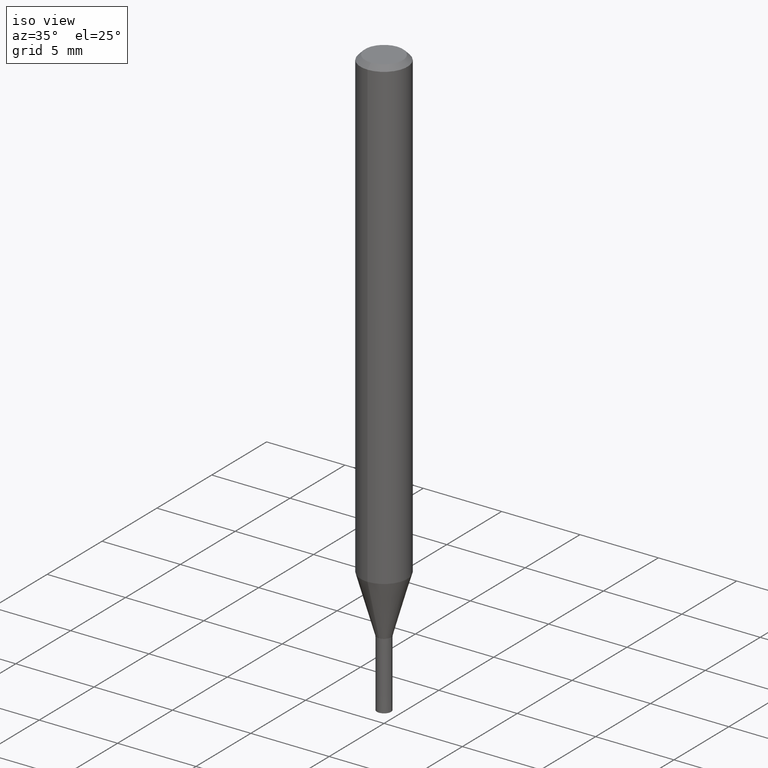
[diagram: clean part render]
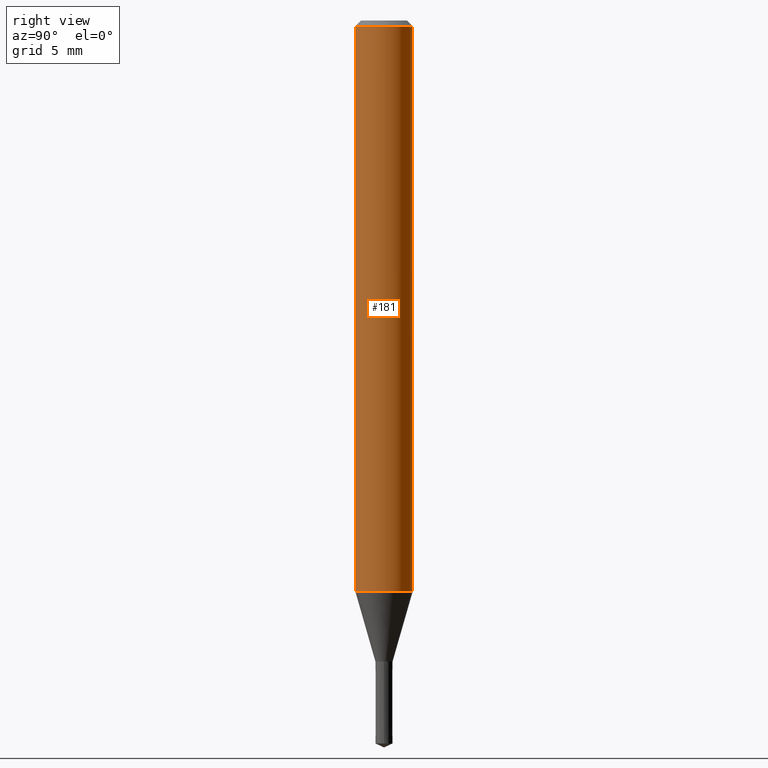
[diagram: tour spotlight — one face highlighted and labeled with its STEP entity id]
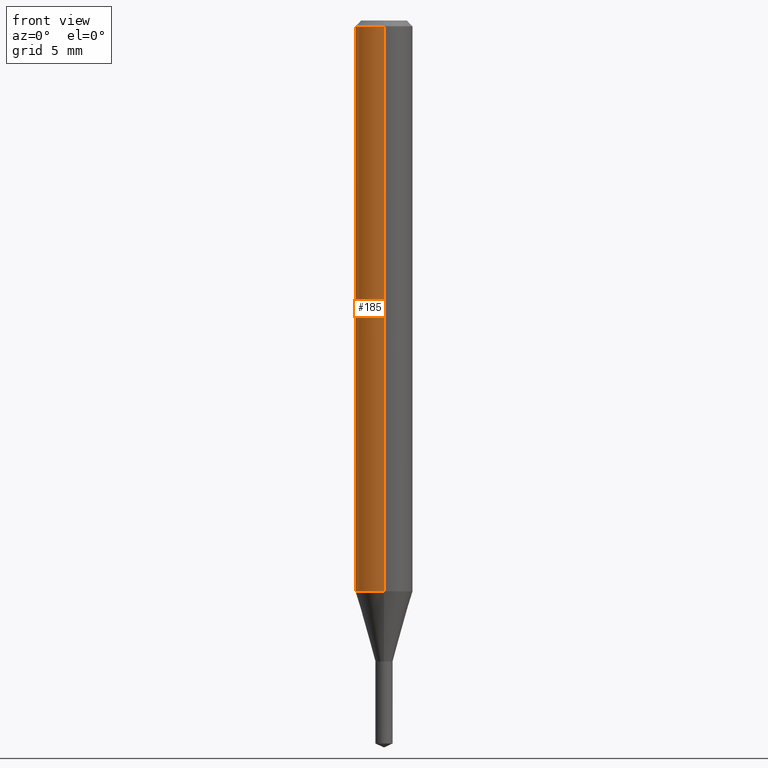
[diagram: tour spotlight — one face highlighted and labeled with its STEP entity id]
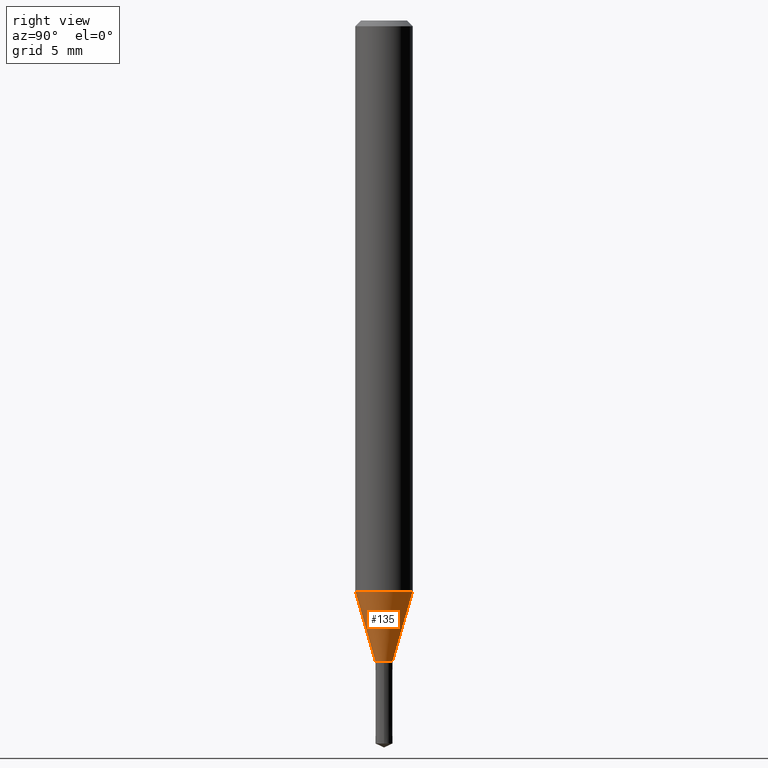
[diagram: tour spotlight — one face highlighted and labeled with its STEP entity id]
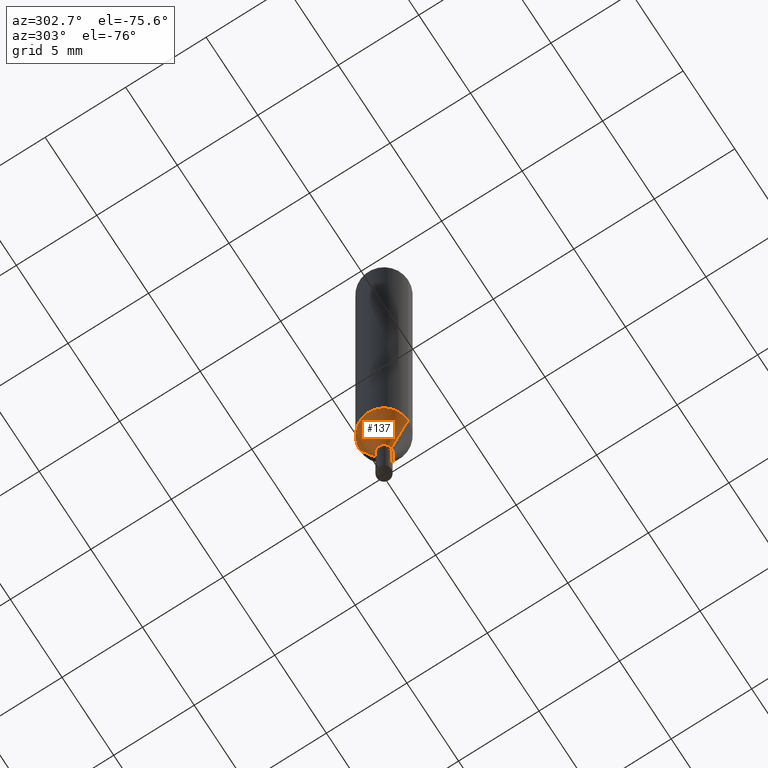
[diagram: tour spotlight — one face highlighted and labeled with its STEP entity id]
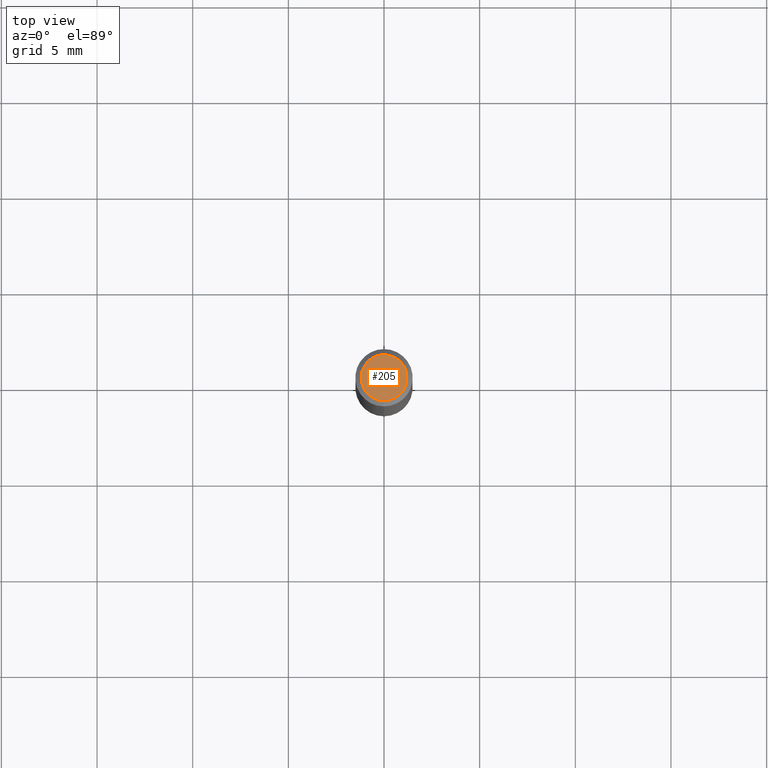
[diagram: tour spotlight — one face highlighted and labeled with its STEP entity id]
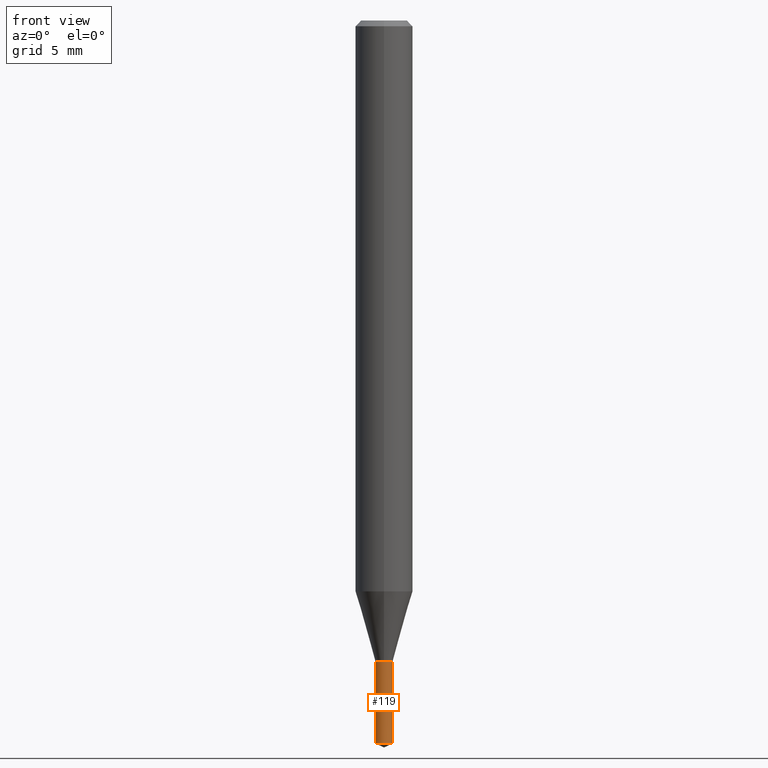
[diagram: tour spotlight — one face highlighted and labeled with its STEP entity id]
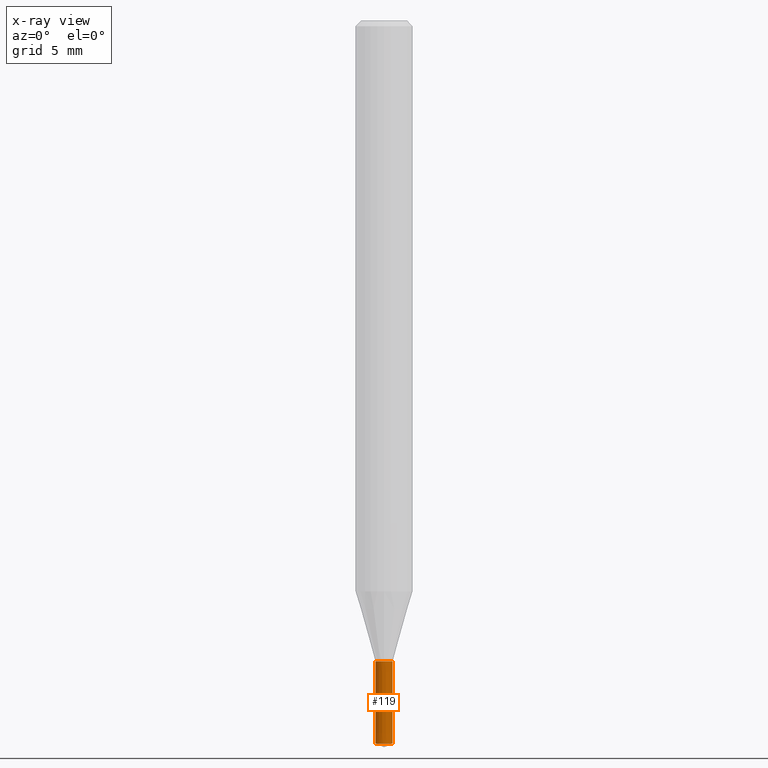
[diagram: x-ray of the same camera — body ghosted, this tour face saturated]
A machine part: a face-by-face anatomy tour. The part has 15 B-rep faces; the first image is the clean iso view, then the 6 largest visible faces are spotlighted one at a time (largest first), each with its STEP entity span.

Face 1 — right view, entity #181. In plain terms, the highlighted cylindrical surface (edge-blend (fillet) strip) has radius 1.5 mm, axis along (-0, -0, 1).
Definition (entity closure, byte-faithful):
#111=EDGE_CURVE('',#115,#189,#246,.T.);
#115=VERTEX_POINT('',#250);
#125=VERTEX_POINT('',#262);
#127=EDGE_CURVE('',#125,#141,#264,.T.);
#141=VERTEX_POINT('',#280);
#181=ADVANCED_FACE('',(#327),#328,.T.);
#189=VERTEX_POINT('',#337);
#195=EDGE_CURVE('',#141,#189,#344,.T.);
#199=EDGE_CURVE('',#115,#125,#348,.T.);
#246=CIRCLE('',#396,1.5);
#250=CARTESIAN_POINT('',(0.0,1.5,-0.300000000000001));
#262=CARTESIAN_POINT('',(0.0,1.5,-29.838));
#264=CIRCLE('',#417,1.5);
#280=CARTESIAN_POINT('',(1.83690953073357E-016,-1.5,-29.838));
#327=FACE_OUTER_BOUND('',#494,.T.);
#328=CYLINDRICAL_SURFACE('',#495,1.5);
#337=CARTESIAN_POINT('',(1.83690953073357E-016,-1.5,-0.300000000000001));
#344=LINE('',#514,#515);
#348=LINE('',#522,#523);
#396=AXIS2_PLACEMENT_3D('',#545,#546,#547);
#417=AXIS2_PLACEMENT_3D('',#568,#569,#570);
#494=EDGE_LOOP('',(#666,#667,#668,#669));
#495=AXIS2_PLACEMENT_3D('',#670,#671,#672);
#514=CARTESIAN_POINT('',(1.83690953073357E-016,-1.5,-15.069));
#515=VECTOR('',#690,1.0);
#522=CARTESIAN_POINT('',(-1.83690953073357E-016,1.5,-15.069));
#523=VECTOR('',#692,1.0);
#545=CARTESIAN_POINT('',(0.0,0.0,-0.300000000000001));
#546=DIRECTION('',(0.0,0.0,-1.0));
#547=DIRECTION('',(0.0,1.0,0.0));
#568=CARTESIAN_POINT('',(0.0,0.0,-29.838));
#569=DIRECTION('',(0.0,0.0,-1.0));
#570=DIRECTION('',(0.0,1.0,0.0));
#666=ORIENTED_EDGE('',*,*,#199,.F.);
#667=ORIENTED_EDGE('',*,*,#111,.T.);
#668=ORIENTED_EDGE('',*,*,#195,.F.);
#669=ORIENTED_EDGE('',*,*,#127,.F.);
#670=CARTESIAN_POINT('',(0.0,0.0,-15.069));
#671=DIRECTION('',(-0.0,-0.0,1.0));
#672=DIRECTION('',(0.0,1.0,0.0));
#690=DIRECTION('',(-0.0,-0.0,1.0));
#692=DIRECTION('',(0.0,0.0,-1.0));

Face 2 — front view, entity #185. In plain terms, the highlighted cylindrical surface (edge-blend (fillet) strip) has radius 1.5 mm, axis along (-0, -0, 1).
Definition (entity closure, byte-faithful):
#115=VERTEX_POINT('',#250);
#125=VERTEX_POINT('',#262);
#141=VERTEX_POINT('',#280);
#147=EDGE_CURVE('',#141,#125,#286,.T.);
#171=EDGE_CURVE('',#189,#115,#314,.T.);
#185=ADVANCED_FACE('',(#332),#333,.T.);
#189=VERTEX_POINT('',#337);
#195=EDGE_CURVE('',#141,#189,#344,.T.);
#199=EDGE_CURVE('',#115,#125,#348,.T.);
#250=CARTESIAN_POINT('',(0.0,1.5,-0.300000000000001));
#262=CARTESIAN_POINT('',(0.0,1.5,-29.838));
#280=CARTESIAN_POINT('',(1.83690953073357E-016,-1.5,-29.838));
#286=CIRCLE('',#442,1.5);
#314=CIRCLE('',#480,1.5);
#332=FACE_OUTER_BOUND('',#499,.T.);
#333=CYLINDRICAL_SURFACE('',#500,1.5);
#337=CARTESIAN_POINT('',(1.83690953073357E-016,-1.5,-0.300000000000001));
#344=LINE('',#514,#515);
#348=LINE('',#522,#523);
#442=AXIS2_PLACEMENT_3D('',#597,#598,#599);
#480=AXIS2_PLACEMENT_3D('',#636,#637,#638);
#499=EDGE_LOOP('',(#674,#675,#676,#677));
#500=AXIS2_PLACEMENT_3D('',#678,#679,#680);
#514=CARTESIAN_POINT('',(1.83690953073357E-016,-1.5,-15.069));
#515=VECTOR('',#690,1.0);
#522=CARTESIAN_POINT('',(-1.83690953073357E-016,1.5,-15.069));
#523=VECTOR('',#692,1.0);
#597=CARTESIAN_POINT('',(0.0,0.0,-29.838));
#598=DIRECTION('',(0.0,0.0,-1.0));
#599=DIRECTION('',(0.0,1.0,0.0));
#636=CARTESIAN_POINT('',(0.0,0.0,-0.300000000000001));
#637=DIRECTION('',(0.0,0.0,-1.0));
#638=DIRECTION('',(0.0,1.0,0.0));
#674=ORIENTED_EDGE('',*,*,#199,.T.);
#675=ORIENTED_EDGE('',*,*,#147,.F.);
#676=ORIENTED_EDGE('',*,*,#195,.T.);
#677=ORIENTED_EDGE('',*,*,#171,.T.);
#678=CARTESIAN_POINT('',(0.0,0.0,-15.069));
#679=DIRECTION('',(-0.0,-0.0,1.0));
#680=DIRECTION('',(0.0,1.0,0.0));
#690=DIRECTION('',(-0.0,-0.0,1.0));
#692=DIRECTION('',(0.0,0.0,-1.0));

Face 3 — right view, entity #135. In plain terms, the highlighted conical surface has half-angle 16.003 deg.
Definition (entity closure, byte-faithful):
#101=EDGE_CURVE('',#125,#145,#236,.T.);
#125=VERTEX_POINT('',#262);
#127=EDGE_CURVE('',#125,#141,#264,.T.);
#135=ADVANCED_FACE('',(#272),#273,.T.);
#141=VERTEX_POINT('',#280);
#145=VERTEX_POINT('',#284);
#161=EDGE_CURVE('',#183,#141,#303,.T.);
#183=VERTEX_POINT('',#330);
#201=EDGE_CURVE('',#145,#183,#350,.T.);
#236=LINE('',#381,#382);
#262=CARTESIAN_POINT('',(0.0,1.5,-29.838));
#264=CIRCLE('',#417,1.5);
#272=FACE_OUTER_BOUND('',#427,.T.);
#273=CONICAL_SURFACE('',#428,0.975,0.27929980700525);
#280=CARTESIAN_POINT('',(1.83690953073357E-016,-1.5,-29.838));
#284=CARTESIAN_POINT('',(0.0,0.45,-33.4991339745962));
#303=LINE('',#463,#464);
#330=CARTESIAN_POINT('',(5.5107285922007E-017,-0.45,-33.4991339745962));
#350=CIRCLE('',#526,0.45);
#381=CARTESIAN_POINT('',(-1.19399119497682E-016,0.975,-31.6685669872981));
#382=VECTOR('',#540,1.0);
#417=AXIS2_PLACEMENT_3D('',#568,#569,#570);
#427=EDGE_LOOP('',(#578,#579,#580,#581));
#428=AXIS2_PLACEMENT_3D('',#582,#583,#584);
#463=CARTESIAN_POINT('',(1.19399119497682E-016,-0.975,-31.6685669872981));
#464=VECTOR('',#627,1.0);
#526=AXIS2_PLACEMENT_3D('',#693,#694,#695);
#540=DIRECTION('',(3.37602732897714E-017,-0.275682656589157,-0.961248704995718));
#568=CARTESIAN_POINT('',(0.0,0.0,-29.838));
#569=DIRECTION('',(0.0,0.0,-1.0));
#570=DIRECTION('',(0.0,1.0,0.0));
#578=ORIENTED_EDGE('',*,*,#101,.F.);
#579=ORIENTED_EDGE('',*,*,#127,.T.);
#580=ORIENTED_EDGE('',*,*,#161,.F.);
#581=ORIENTED_EDGE('',*,*,#201,.F.);
#582=CARTESIAN_POINT('',(0.0,0.0,-31.6685669872981));
#583=DIRECTION('',(-0.0,-0.0,1.0));
#584=DIRECTION('',(0.0,1.0,0.0));
#627=DIRECTION('',(3.37602732897714E-017,-0.275682656589157,0.961248704995718));
#693=CARTESIAN_POINT('',(0.0,0.0,-33.4991339745962));
#694=DIRECTION('',(0.0,0.0,-1.0));
#695=DIRECTION('',(0.0,1.0,0.0));

Face 4 — auxiliary view, entity #137. In plain terms, the highlighted conical surface has half-angle 16.003 deg.
Definition (entity closure, byte-faithful):
#101=EDGE_CURVE('',#125,#145,#236,.T.);
#125=VERTEX_POINT('',#262);
#129=EDGE_CURVE('',#183,#145,#266,.T.);
#137=ADVANCED_FACE('',(#275),#276,.T.);
#141=VERTEX_POINT('',#280);
#145=VERTEX_POINT('',#284);
#147=EDGE_CURVE('',#141,#125,#286,.T.);
#161=EDGE_CURVE('',#183,#141,#303,.T.);
#183=VERTEX_POINT('',#330);
#236=LINE('',#381,#382);
#262=CARTESIAN_POINT('',(0.0,1.5,-29.838));
#266=CIRCLE('',#420,0.45);
#275=FACE_OUTER_BOUND('',#430,.T.);
#276=CONICAL_SURFACE('',#431,0.975,0.27929980700525);
#280=CARTESIAN_POINT('',(1.83690953073357E-016,-1.5,-29.838));
#284=CARTESIAN_POINT('',(0.0,0.45,-33.4991339745962));
#286=CIRCLE('',#442,1.5);
#303=LINE('',#463,#464);
#330=CARTESIAN_POINT('',(5.5107285922007E-017,-0.45,-33.4991339745962));
#381=CARTESIAN_POINT('',(-1.19399119497682E-016,0.975,-31.6685669872981));
#382=VECTOR('',#540,1.0);
#420=AXIS2_PLACEMENT_3D('',#571,#572,#573);
#430=EDGE_LOOP('',(#586,#587,#588,#589));
#431=AXIS2_PLACEMENT_3D('',#590,#591,#592);
#442=AXIS2_PLACEMENT_3D('',#597,#598,#599);
#463=CARTESIAN_POINT('',(1.19399119497682E-016,-0.975,-31.6685669872981));
#464=VECTOR('',#627,1.0);
#540=DIRECTION('',(3.37602732897714E-017,-0.275682656589157,-0.961248704995718));
#571=CARTESIAN_POINT('',(0.0,0.0,-33.4991339745962));
#572=DIRECTION('',(0.0,0.0,-1.0));
#573=DIRECTION('',(0.0,1.0,0.0));
#586=ORIENTED_EDGE('',*,*,#101,.T.);
#587=ORIENTED_EDGE('',*,*,#129,.F.);
#588=ORIENTED_EDGE('',*,*,#161,.T.);
#589=ORIENTED_EDGE('',*,*,#147,.T.);
#590=CARTESIAN_POINT('',(0.0,0.0,-31.6685669872981));
#591=DIRECTION('',(-0.0,-0.0,1.0));
#592=DIRECTION('',(0.0,1.0,0.0));
#597=CARTESIAN_POINT('',(0.0,0.0,-29.838));
#598=DIRECTION('',(0.0,0.0,-1.0));
#599=DIRECTION('',(0.0,1.0,0.0));
#627=DIRECTION('',(3.37602732897714E-017,-0.275682656589157,0.961248704995718));

Face 5 — top view, entity #205. In plain terms, the highlighted planar face has unit normal (-0, 0, 1).
Definition (entity closure, byte-faithful):
#95=EDGE_CURVE('',#191,#105,#230,.T.);
#103=EDGE_CURVE('',#105,#191,#238,.T.);
#105=VERTEX_POINT('',#240);
#191=VERTEX_POINT('',#339);
#205=ADVANCED_FACE('',(#354),#355,.T.);
#230=CIRCLE('',#375,1.2);
#238=CIRCLE('',#385,1.2);
#240=CARTESIAN_POINT('',(1.46952762458685E-016,-1.2,0.0));
#339=CARTESIAN_POINT('',(0.0,1.2,0.0));
#354=FACE_OUTER_BOUND('',#532,.T.);
#355=PLANE('',#533);
#375=AXIS2_PLACEMENT_3D('',#536,#537,#538);
#385=AXIS2_PLACEMENT_3D('',#541,#542,#543);
#532=EDGE_LOOP('',(#698,#699));
#533=AXIS2_PLACEMENT_3D('',#700,#701,#702);
#536=CARTESIAN_POINT('',(0.0,0.0,0.0));
#537=DIRECTION('',(0.0,0.0,-1.0));
#538=DIRECTION('',(0.0,1.0,0.0));
#541=CARTESIAN_POINT('',(0.0,0.0,0.0));
#542=DIRECTION('',(0.0,0.0,-1.0));
#543=DIRECTION('',(0.0,1.0,0.0));
#698=ORIENTED_EDGE('',*,*,#95,.F.);
#699=ORIENTED_EDGE('',*,*,#103,.F.);
#700=CARTESIAN_POINT('',(0.0,0.6,0.0));
#701=DIRECTION('',(-0.0,0.0,1.0));
#702=DIRECTION('',(0.0,-1.0,0.0));

Face 6 — front view, entity #119. An x-ray twin of the same camera follows (body ghosted, this face saturated) — the face is partly hidden behind the body. In plain terms, the highlighted conical surface has half-angle 0.013 deg.
Definition (entity closure, byte-faithful):
#109=VERTEX_POINT('',#244);
#113=EDGE_CURVE('',#123,#167,#248,.T.);
#119=ADVANCED_FACE('',(#254),#255,.T.);
#123=VERTEX_POINT('',#260);
#139=EDGE_CURVE('',#153,#109,#278,.T.);
#153=VERTEX_POINT('',#293);
#167=VERTEX_POINT('',#310);
#169=EDGE_CURVE('',#109,#167,#312,.T.);
#187=EDGE_CURVE('',#123,#153,#335,.T.);
#244=CARTESIAN_POINT('',(-0.451,0.0,-33.5));
#248=CIRCLE('',#399,0.45);
#254=FACE_OUTER_BOUND('',#406,.T.);
#255=CONICAL_SURFACE('',#407,0.4505,0.000233091451274011);
#260=CARTESIAN_POINT('',(0.45,5.5107285922007E-017,-37.79016155));
#278=CIRCLE('',#434,0.451);
#293=CARTESIAN_POINT('',(0.451,5.52297465573892E-017,-33.5));
#310=CARTESIAN_POINT('',(-0.45,0.0,-37.79016155));
#312=LINE('',#476,#477);
#335=LINE('',#503,#504);
#399=AXIS2_PLACEMENT_3D('',#548,#549,#550);
#406=EDGE_LOOP('',(#555,#556,#557,#558));
#407=AXIS2_PLACEMENT_3D('',#559,#560,#561);
#434=AXIS2_PLACEMENT_3D('',#593,#594,#595);
#476=CARTESIAN_POINT('',(-0.4505,-5.51685162396981E-017,-35.645080775));
#477=VECTOR('',#635,1.0);
#503=CARTESIAN_POINT('',(0.4505,5.51685162396981E-017,-35.645080775));
#504=VECTOR('',#681,1.0);
#548=CARTESIAN_POINT('',(0.0,0.0,-37.79016155));
#549=DIRECTION('',(0.0,0.0,-1.0));
#550=DIRECTION('',(-1.0,0.0,0.0));
#555=ORIENTED_EDGE('',*,*,#169,.T.);
#556=ORIENTED_EDGE('',*,*,#113,.F.);
#557=ORIENTED_EDGE('',*,*,#187,.T.);
#558=ORIENTED_EDGE('',*,*,#139,.T.);
#559=CARTESIAN_POINT('',(0.0,0.0,-35.645080775));
#560=DIRECTION('',(-0.0,-0.0,1.0));
#561=DIRECTION('',(-1.0,0.0,0.0));
#593=CARTESIAN_POINT('',(0.0,0.0,-33.5));
#594=DIRECTION('',(0.0,0.0,-1.0));
#595=DIRECTION('',(-1.0,0.0,0.0));
#635=DIRECTION('',(0.000233091449163305,2.85445269667048E-020,-0.999999972834188));
#681=DIRECTION('',(0.000233091449163305,2.85445269667048E-020,0.999999972834188));